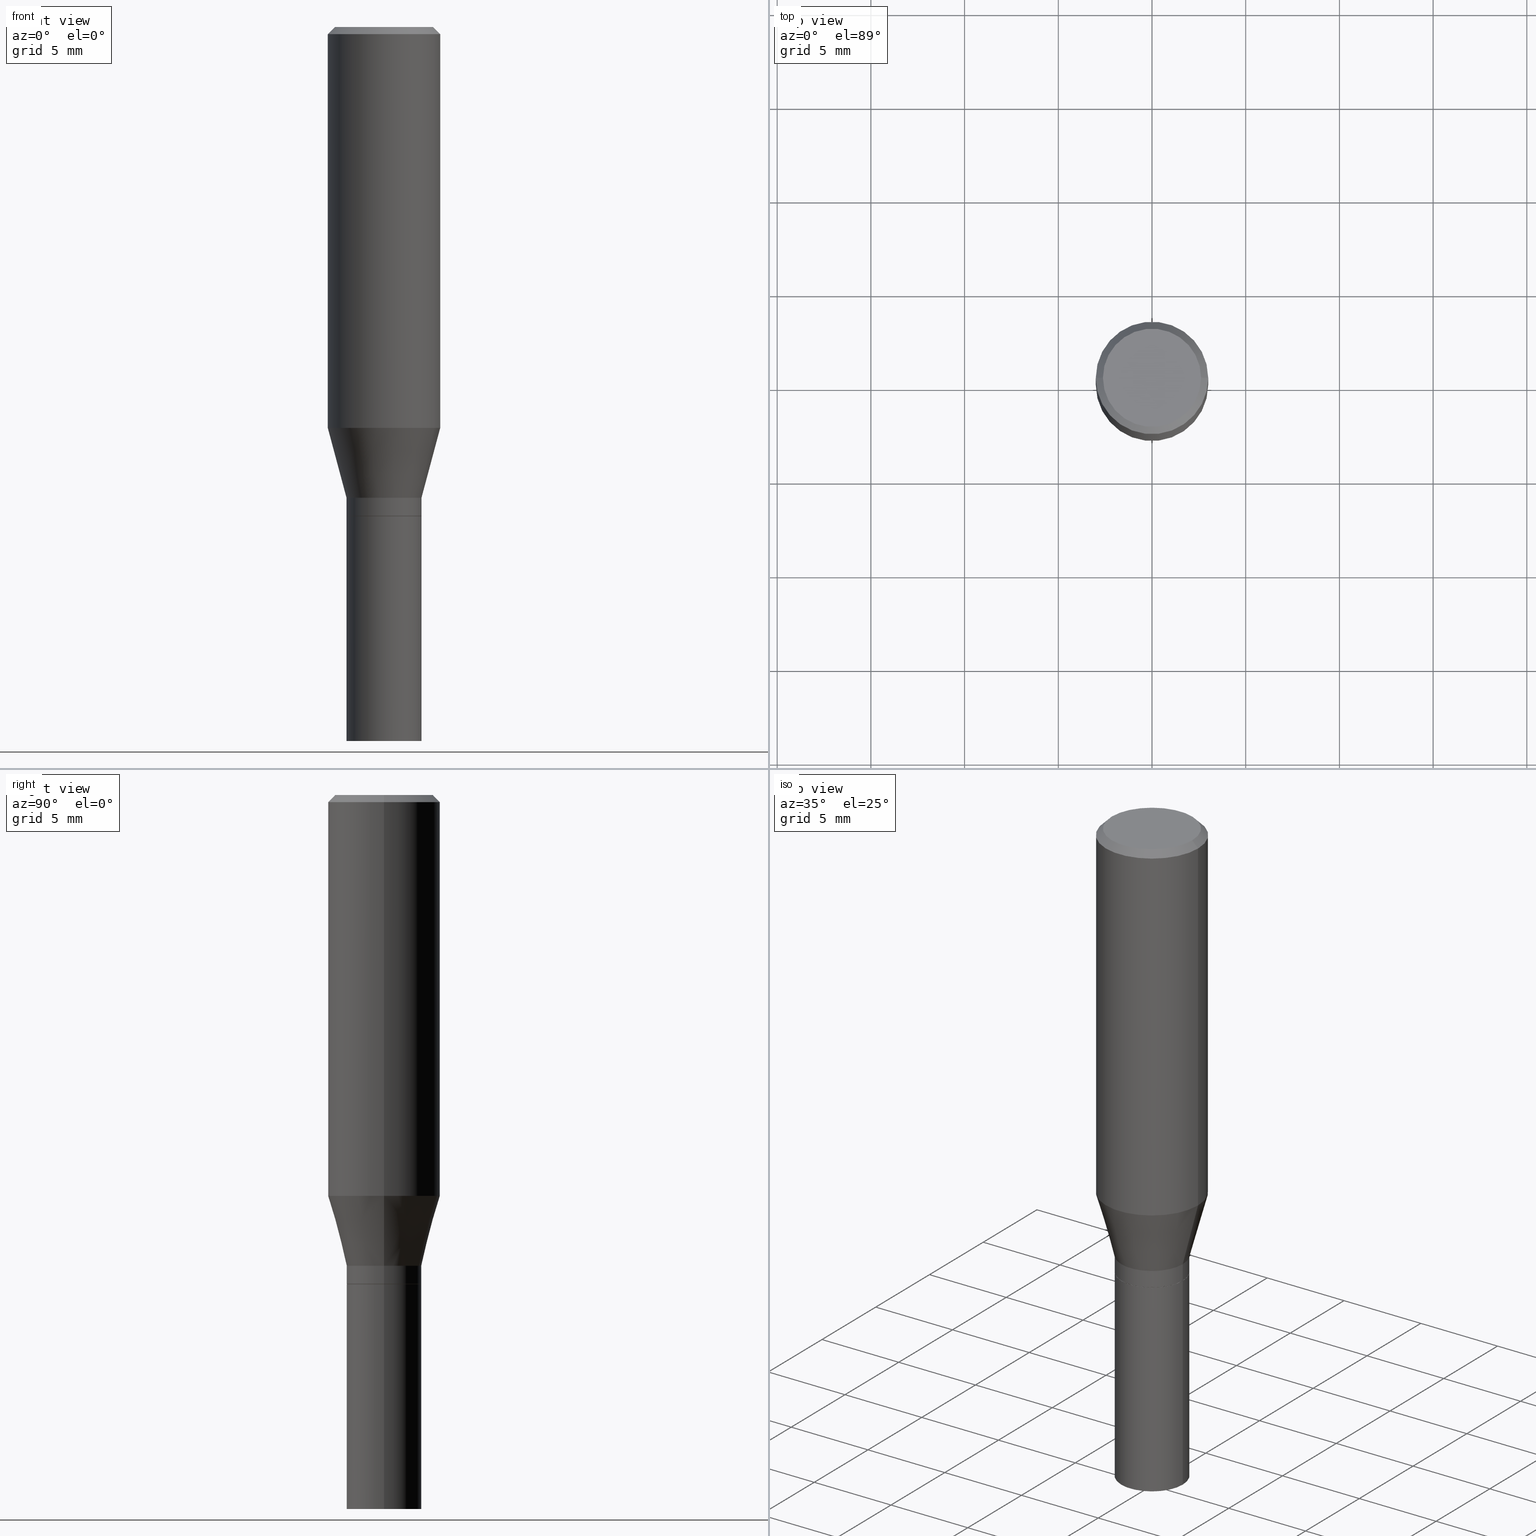
[diagram: canonical four-view strip — front | top / right | iso, engineering-drawing reading convention]
A machine part, canonical four-view strip (front | top / right | iso — engineering-drawing reading convention). The complete STEP part file that produces these views, byte-faithful:
ISO-10303-21;
HEADER;
FILE_DESCRIPTION (( 'STEP AP203' ),
    '1' );
FILE_NAME ('43921.STEP',
    '2024-03-12T19:19:30',
    ( '' ),
    ( '' ),
    'SwSTEP 2.0',
    'SolidWorks 2023',
    '' );
FILE_SCHEMA (( 'CONFIG_CONTROL_DESIGN' ));
ENDSEC;

DATA;
#1 = CARTESIAN_POINT ( 'NONE',  ( 2.418568649317100009E-29, -3.453075044115871321E-15, -0.9889999999999999902 ) ) ;
#2 = AXIS2_PLACEMENT_3D ( 'NONE', #320, #461, #108 ) ;
#3 = CARTESIAN_POINT ( 'NONE',  ( 3.668203209277697643E-31, -5.237222008264707922E-17, -0.01499999999999996995 ) ) ;
#4 = ADVANCED_FACE ( 'NONE', ( #430 ), #397, .F. ) ;
#5 = DIMENSIONAL_EXPONENTS ( 1.000000000000000000, 0.000000000000000000, 0.000000000000000000, 0.000000000000000000, 0.000000000000000000, 0.000000000000000000, 0.000000000000000000 ) ;
#6 = ORIENTED_EDGE ( 'NONE', *, *, #35, .T. ) ;
#7 = PERSON_AND_ORGANIZATION ( #159, #25 ) ;
#8 = FACE_OUTER_BOUND ( 'NONE', #138, .T. ) ;
#9 = APPROVAL_STATUS ( 'not_yet_approved' ) ;
#10 = EDGE_CURVE ( 'NONE', #69, #327, #122, .T. ) ;
#11 = VERTEX_POINT ( 'NONE', #275 ) ;
#12 = VECTOR ( 'NONE', #373, 39.37007874015748143 ) ;
#13 = CC_DESIGN_APPROVAL ( #264, ( #465 ) ) ;
#14 = PERSON_AND_ORGANIZATION ( #159, #25 ) ;
#15 = ORIENTED_EDGE ( 'NONE', *, *, #306, .F. ) ;
#16 = APPROVAL_DATE_TIME ( #88, #29 ) ;
#17 = CONICAL_SURFACE ( 'NONE', #428, 0.07875000000000016709, 0.2617993877991501850 ) ;
#18 = FACE_OUTER_BOUND ( 'NONE', #90, .T. ) ;
#19 = EDGE_CURVE ( 'NONE', #63, #119, #449, .T. ) ;
#20 = DIRECTION ( 'NONE',  ( 1.000000000000000000, -6.982962677686261977E-15, 0.000000000000000000 ) ) ;
#21 = DIRECTION ( 'NONE',  ( -2.445468806185136597E-29, 3.491481338843145583E-15, 1.000000000000000000 ) ) ;
#22 = DIRECTION ( 'NONE',  ( -2.445468806185136597E-29, 3.491481338843145583E-15, 1.000000000000000000 ) ) ;
#23 = EDGE_CURVE ( 'NONE', #63, #312, #456, .T. ) ;
#24 = ORIENTED_EDGE ( 'NONE', *, *, #198, .F. ) ;
#25 = ORGANIZATION ( 'UNSPECIFIED', 'UNSPECIFIED', '' ) ;
#26 = DIRECTION ( 'NONE',  ( -2.445468806185136597E-29, 3.491481338843145583E-15, 1.000000000000000000 ) ) ;
#27 = ORIENTED_EDGE ( 'NONE', *, *, #452, .T. ) ;
#28 = DIRECTION ( 'NONE',  ( -1.000000000000000000, 6.982962677686266711E-15, 0.000000000000000000 ) ) ;
#29 = APPROVAL ( #222, 'UNSPECIFIED' ) ;
#30 = DIRECTION ( 'NONE',  ( -2.445468806185136597E-29, 3.491481338843145583E-15, 1.000000000000000000 ) ) ;
#31 = DIRECTION ( 'NONE',  ( 1.000000000000000000, -6.982962677686266711E-15, 4.876176775795936353E-29 ) ) ;
#32 = AXIS2_PLACEMENT_3D ( 'NONE', #372, #51, #193 ) ;
#33 = DIRECTION ( 'NONE',  ( -2.438088387897960049E-29, 3.491481338843145188E-15, 1.000000000000000000 ) ) ;
#34 = APPROVAL_PERSON_ORGANIZATION ( #121, #264, #188 ) ;
#35 = EDGE_CURVE ( 'NONE', #169, #45, #167, .T. ) ;
#36 = DIRECTION ( 'NONE',  ( -2.445468806185136877E-29, 3.491481338843145188E-15, 1.000000000000000000 ) ) ;
#37 = CARTESIAN_POINT ( 'NONE',  ( 2.418568649317100009E-29, -3.453075044115871321E-15, -0.9889999999999999902 ) ) ;
#38 = EDGE_CURVE ( 'NONE', #123, #271, #232, .T. ) ;
#39 = DIRECTION ( 'NONE',  ( 0.7071067811865595631, -2.468850131082382884E-15, 0.7071067811865354713 ) ) ;
#40 = CIRCLE ( 'NONE', #97, 0.07875000000000000056 ) ;
#41 =( GEOMETRIC_REPRESENTATION_CONTEXT ( 3 ) GLOBAL_UNCERTAINTY_ASSIGNED_CONTEXT ( ( #174 ) ) GLOBAL_UNIT_ASSIGNED_CONTEXT ( ( #157, #440, #403 ) ) REPRESENTATION_CONTEXT ( 'NONE', 'WORKASPACE' ) );
#42 = APPROVAL_ROLE ( '' ) ;
#43 = EDGE_CURVE ( 'NONE', #312, #11, #195, .T. ) ;
#44 = PERSON_AND_ORGANIZATION ( #159, #25 ) ;
#45 = VERTEX_POINT ( 'NONE', #251 ) ;
#46 = CC_DESIGN_PERSON_AND_ORGANIZATION_ASSIGNMENT ( #14, #444, ( #168 ) ) ;
#47 = VERTEX_POINT ( 'NONE', #295 ) ;
#48 = AXIS2_PLACEMENT_3D ( 'NONE', #130, #22, #277 ) ;
#49 = EDGE_LOOP ( 'NONE', ( #350, #160, #425, #60 ) ) ;
#50 = ORIENTED_EDGE ( 'NONE', *, *, #152, .F. ) ;
#51 = DIRECTION ( 'NONE',  ( -2.445468806185136597E-29, 3.491481338843145583E-15, 1.000000000000000000 ) ) ;
#52 = ADVANCED_FACE ( 'NONE', ( #8 ), #407, .T. ) ;
#53 = ORIENTED_EDGE ( 'NONE', *, *, #230, .F. ) ;
#54 = AXIS2_PLACEMENT_3D ( 'NONE', #418, #102, #272 ) ;
#55 = CARTESIAN_POINT ( 'NONE',  ( 2.511741010832753769E-29, -3.586100483125795415E-15, -1.027100000000000124 ) ) ;
#56 = CARTESIAN_POINT ( 'NONE',  ( 2.512963745235846851E-29, -3.587846223795217707E-15, -1.027600000000000291 ) ) ;
#57 = PRODUCT ( '43921', '43921', '', ( #300 ) ) ;
#58 = DIRECTION ( 'NONE',  ( -1.000000000000000000, 6.982962677686266711E-15, 0.000000000000000000 ) ) ;
#59 = ADVANCED_FACE ( 'NONE', ( #387 ), #315, .T. ) ;
#60 = ORIENTED_EDGE ( 'NONE', *, *, #78, .F. ) ;
#61 = CARTESIAN_POINT ( 'NONE',  ( 0.07825000000000000011, -4.134263053324168046E-15, -1.027600000000000291 ) ) ;
#62 = CARTESIAN_POINT ( 'NONE',  ( -0.07875000000000000056, 5.595524044110789003E-16, -3.873661383575737792E-30 ) ) ;
#63 = VERTEX_POINT ( 'NONE', #280 ) ;
#64 = PRODUCT_DEFINITION_SHAPE ( 'NONE', 'NONE',  #465 ) ;
#65 = AXIS2_PLACEMENT_3D ( 'NONE', #381, #446, #207 ) ;
#66 = DIRECTION ( 'NONE',  ( 1.000000000000000000, -6.982962677686268288E-15, 0.000000000000000000 ) ) ;
#67 = CC_DESIGN_PERSON_AND_ORGANIZATION_ASSIGNMENT ( #434, #261, ( #465 ) ) ;
#68 = CARTESIAN_POINT ( 'NONE',  ( 0.07875000000000016709, -4.002983354983665455E-15, -0.9889999999999999902 ) ) ;
#69 = VERTEX_POINT ( 'NONE', #94 ) ;
#70 = DESIGN_CONTEXT ( 'detailed design', #276, 'design' ) ;
#71 = ADVANCED_FACE ( 'NONE', ( #93 ), #73, .T. ) ;
#72 = DIRECTION ( 'NONE',  ( -2.445468806185136597E-29, 3.491481338843145583E-15, 1.000000000000000000 ) ) ;
#73 = CONICAL_SURFACE ( 'NONE', #32, 0.07875000000000016709, 0.2617993877991501850 ) ;
#74 = CARTESIAN_POINT ( 'NONE',  ( 0.000000000000000000, 0.000000000000000000, 0.000000000000000000 ) ) ;
#75 = APPROVAL_PERSON_ORGANIZATION ( #7, #29, #116 ) ;
#76 = DIRECTION ( 'NONE',  ( -2.445468806185136597E-29, 3.491481338843145583E-15, 1.000000000000000000 ) ) ;
#77 = LINE ( 'NONE', #140, #356 ) ;
#78 = EDGE_CURVE ( 'NONE', #271, #327, #263, .T. ) ;
#79 = CARTESIAN_POINT ( 'NONE',  ( 7.199434520694539070E-16, 0.1030999999999999833, -2.799333564565821924E-16 ) ) ;
#80 = DIRECTION ( 'NONE',  ( 1.000000000000000000, -6.982962677686267499E-15, 0.000000000000000000 ) ) ;
#81 = DATE_AND_TIME ( #268, #450 ) ;
#82 = DIRECTION ( 'NONE',  ( 1.000000000000000000, -6.982962677686268288E-15, 0.000000000000000000 ) ) ;
#83 = CIRCLE ( 'NONE', #338, 0.07875000000000000056 ) ;
#84 = PERSON_AND_ORGANIZATION ( #159, #25 ) ;
#85 = ORIENTED_EDGE ( 'NONE', *, *, #148, .F. ) ;
#86 = DIRECTION ( 'NONE',  ( 1.000000000000000000, 0.000000000000000000, 0.000000000000000000 ) ) ;
#87 = APPLICATION_CONTEXT ( 'configuration controlled 3d designs of mechanical parts and assemblies' ) ;
#88 = DATE_AND_TIME ( #187, #391 ) ;
#89 = EDGE_CURVE ( 'NONE', #11, #312, #40, .T. ) ;
#90 = EDGE_LOOP ( 'NONE', ( #342, #253 ) ) ;
#91 = AXIS2_PLACEMENT_3D ( 'NONE', #270, #313, #309 ) ;
#92 = CC_DESIGN_APPROVAL ( #282, ( #168 ) ) ;
#93 = FACE_OUTER_BOUND ( 'NONE', #287, .T. ) ;
#94 = CARTESIAN_POINT ( 'NONE',  ( 0.07875000000000018097, -4.136008793993590338E-15, -1.027100000000000124 ) ) ;
#95 = COORDINATED_UNIVERSAL_TIME_OFFSET ( 5, 0, .BEHIND. ) ;
#96 = DIRECTION ( 'NONE',  ( 0.2588190451025214611, 1.565188264969620982E-15, 0.9659258262890679791 ) ) ;
#97 = AXIS2_PLACEMENT_3D ( 'NONE', #348, #355, #66 ) ;
#98 = FACE_OUTER_BOUND ( 'NONE', #404, .T. ) ;
#99 = CARTESIAN_POINT ( 'NONE',  ( 2.512963745235846851E-29, -3.587846223795217707E-15, -1.027600000000000291 ) ) ;
#100 = ORIENTED_EDGE ( 'NONE', *, *, #162, .F. ) ;
#101 = ORIENTED_EDGE ( 'NONE', *, *, #252, .F. ) ;
#102 = DIRECTION ( 'NONE',  ( -2.445468806185136597E-29, 3.491481338843145583E-15, 1.000000000000000000 ) ) ;
#103 = VECTOR ( 'NONE', #197, 39.37007874015748143 ) ;
#104 = LOCAL_TIME ( 15, 19, 30.00000000000000000, #258 ) ;
#105 = CARTESIAN_POINT ( 'NONE',  ( 3.668203209277697643E-31, -5.237222008264707922E-17, -0.01499999999999996995 ) ) ;
#106 = ADVANCED_FACE ( 'NONE', ( #206 ), #236, .T. ) ;
#107 = PLANE ( 'NONE',  #203 ) ;
#108 = DIRECTION ( 'NONE',  ( 1.000000000000000000, -6.982962677686266711E-15, 0.000000000000000000 ) ) ;
#109 = ORIENTED_EDGE ( 'NONE', *, *, #227, .T. ) ;
#110 = CARTESIAN_POINT ( 'NONE',  ( -0.07875000000000016709, -2.497350516807997556E-15, -0.9889999999999999902 ) ) ;
#111 = AXIS2_PLACEMENT_3D ( 'NONE', #210, #33, #177 ) ;
#112 = ADVANCED_FACE ( 'NONE', ( #18 ), #278, .F. ) ;
#113 = VERTEX_POINT ( 'NONE', #307 ) ;
#114 = CARTESIAN_POINT ( 'NONE',  ( 0.1180999999999999966, -3.765017257078630630E-15, -0.8421438007221657696 ) ) ;
#115 = DIRECTION ( 'NONE',  ( 0.7071067811865446862, -7.319954787623245001E-15, -0.7071067811865503483 ) ) ;
#116 = APPROVAL_ROLE ( '' ) ;
#117 = AXIS2_PLACEMENT_3D ( 'NONE', #3, #72, #424 ) ;
#118 = CC_DESIGN_DATE_AND_TIME_ASSIGNMENT ( #81, #219, ( #168 ) ) ;
#119 = VERTEX_POINT ( 'NONE', #235 ) ;
#120 = EDGE_CURVE ( 'NONE', #113, #423, #414, .T. ) ;
#121 = PERSON_AND_ORGANIZATION ( #159, #25 ) ;
#122 = LINE ( 'NONE', #296, #458 ) ;
#123 = VERTEX_POINT ( 'NONE', #308 ) ;
#124 = ADVANCED_FACE ( 'NONE', ( #231 ), #354, .T. ) ;
#125 = CIRCLE ( 'NONE', #175, 0.1030999999999999833 ) ;
#126 = COORDINATED_UNIVERSAL_TIME_OFFSET ( 5, 0, .BEHIND. ) ;
#127 = DIRECTION ( 'NONE',  ( -2.445468806185136597E-29, 3.491481338843145583E-15, 1.000000000000000000 ) ) ;
#128 = ORIENTED_EDGE ( 'NONE', *, *, #120, .F. ) ;
#129 = ORIENTED_EDGE ( 'NONE', *, *, #182, .F. ) ;
#130 = CARTESIAN_POINT ( 'NONE',  ( 2.512963745235846851E-29, -3.587846223795217707E-15, -1.027600000000000291 ) ) ;
#131 = VECTOR ( 'NONE', #96, 39.37007874015748143 ) ;
#132 = DIRECTION ( 'NONE',  ( -2.445468806185136597E-29, 3.491481338843145583E-15, 1.000000000000000000 ) ) ;
#133 = ORIENTED_EDGE ( 'NONE', *, *, #182, .T. ) ;
#134 = FACE_OUTER_BOUND ( 'NONE', #366, .T. ) ;
#135 = CC_DESIGN_PERSON_AND_ORGANIZATION_ASSIGNMENT ( #44, #329, ( #367 ) ) ;
#136 = ORIENTED_EDGE ( 'NONE', *, *, #252, .T. ) ;
#137 = CARTESIAN_POINT ( 'NONE',  ( -0.1180999999999999966, 7.723156721521009862E-16, -0.01499999999999996995 ) ) ;
#138 = EDGE_LOOP ( 'NONE', ( #6, #244, #388, #291 ) ) ;
#139 = AXIS2_PLACEMENT_3D ( 'NONE', #357, #143, #183 ) ;
#140 = CARTESIAN_POINT ( 'NONE',  ( 0.07825000000000000011, -4.134263053324168046E-15, -1.027600000000000291 ) ) ;
#141 = FACE_OUTER_BOUND ( 'NONE', #267, .T. ) ;
#142 = EDGE_LOOP ( 'NONE', ( #176, #242, #154, #101 ) ) ;
#143 = DIRECTION ( 'NONE',  ( -2.445468806185136597E-29, 3.491481338843145583E-15, 1.000000000000000000 ) ) ;
#144 = ORIENTED_EDGE ( 'NONE', *, *, #19, .F. ) ;
#145 = CIRCLE ( 'NONE', #304, 0.07875000000000018097 ) ;
#146 = CARTESIAN_POINT ( 'NONE',  ( 0.000000000000000000, 0.000000000000000000, 0.000000000000000000 ) ) ;
#147 = EDGE_LOOP ( 'NONE', ( #462, #144 ) ) ;
#148 = EDGE_CURVE ( 'NONE', #119, #11, #380, .T. ) ;
#149 = CARTESIAN_POINT ( 'NONE',  ( -0.1180999999999999966, -6.571998215305863288E-16, -0.01499999999999996995 ) ) ;
#150 = ORIENTED_EDGE ( 'NONE', *, *, #419, .F. ) ;
#151 = APPROVAL_STATUS ( 'not_yet_approved' ) ;
#152 = EDGE_CURVE ( 'NONE', #123, #69, #145, .T. ) ;
#153 = AXIS2_PLACEMENT_3D ( 'NONE', #170, #453, #341 ) ;
#154 = ORIENTED_EDGE ( 'NONE', *, *, #452, .F. ) ;
#155 = CARTESIAN_POINT ( 'NONE',  ( 0.000000000000000000, 0.000000000000000000, 0.000000000000000000 ) ) ;
#156 = EDGE_LOOP ( 'NONE', ( #15, #441, #417, #50 ) ) ;
#157 =( CONVERSION_BASED_UNIT ( 'INCH', #406 ) LENGTH_UNIT ( ) NAMED_UNIT ( #5 ) );
#158 = ORIENTED_EDGE ( 'NONE', *, *, #351, .F. ) ;
#159 = PERSON ( 'UNSPECIFIED', 'UNSPECIFIED', 'UNSPECIFIED', ('UNSPECIFIED'), ('UNSPECIFIED'), ('UNSPECIFIED') ) ;
#160 = ORIENTED_EDGE ( 'NONE', *, *, #152, .T. ) ;
#161 = AXIS2_PLACEMENT_3D ( 'NONE', #216, #283, #429 ) ;
#162 = EDGE_CURVE ( 'NONE', #205, #423, #448, .T. ) ;
#163 = FACE_OUTER_BOUND ( 'NONE', #246, .T. ) ;
#164 = CARTESIAN_POINT ( 'NONE',  ( -0.07875000000000018097, 5.595524044110801822E-16, -3.873661383575747601E-30 ) ) ;
#165 = DIRECTION ( 'NONE',  ( -0.7071067811865446862, 2.468850131082227084E-15, -0.7071067811865503483 ) ) ;
#166 = CARTESIAN_POINT ( 'NONE',  ( -0.07875000000000016709, -2.893522639704791336E-15, -0.9889999999999999902 ) ) ;
#167 = CIRCLE ( 'NONE', #323, 0.07825000000000000011 ) ;
#168 = SECURITY_CLASSIFICATION ( '', '', #334 ) ;
#169 = VERTEX_POINT ( 'NONE', #61 ) ;
#170 = CARTESIAN_POINT ( 'NONE',  ( 0.000000000000000000, 0.000000000000000000, 0.000000000000000000 ) ) ;
#171 = LINE ( 'NONE', #68, #131 ) ;
#172 = DIRECTION ( 'NONE',  ( -2.445468806185136597E-29, 3.491481338843145583E-15, 1.000000000000000000 ) ) ;
#173 = ORIENTED_EDGE ( 'NONE', *, *, #402, .T. ) ;
#174 = UNCERTAINTY_MEASURE_WITH_UNIT (LENGTH_MEASURE( 1.000000000000000082E-05 ), #157, 'distance_accuracy_value', 'NONE');
#175 = AXIS2_PLACEMENT_3D ( 'NONE', #451, #132, #239 ) ;
#176 = ORIENTED_EDGE ( 'NONE', *, *, #290, .T. ) ;
#177 = DIRECTION ( 'NONE',  ( 1.000000000000000000, -6.982962677686265922E-15, 4.876176775795935793E-29 ) ) ;
#178 = CARTESIAN_POINT ( 'NONE',  ( -0.07825000000000000011, -3.031846533062939410E-15, -1.027600000000000291 ) ) ;
#179 = ORIENTED_EDGE ( 'NONE', *, *, #35, .F. ) ;
#180 = DIRECTION ( 'NONE',  ( 1.000000000000000000, -6.982962677686269077E-15, 0.000000000000000000 ) ) ;
#181 = ORIENTED_EDGE ( 'NONE', *, *, #43, .F. ) ;
#182 = EDGE_CURVE ( 'NONE', #327, #286, #171, .T. ) ;
#183 = DIRECTION ( 'NONE',  ( 1.000000000000000000, -6.982962677686269077E-15, 0.000000000000000000 ) ) ;
#184 = ORIENTED_EDGE ( 'NONE', *, *, #19, .T. ) ;
#185 = PRODUCT_RELATED_PRODUCT_CATEGORY ( 'detail', '', ( #57 ) ) ;
#186 = ADVANCED_FACE ( 'NONE', ( #163 ), #265, .T. ) ;
#187 = CALENDAR_DATE ( 2024, 12, 3 ) ;
#188 = APPROVAL_ROLE ( '' ) ;
#189 = CC_DESIGN_APPROVAL ( #29, ( #367 ) ) ;
#190 = CC_DESIGN_PERSON_AND_ORGANIZATION_ASSIGNMENT ( #84, #294, ( #367 ) ) ;
#191 = APPLICATION_PROTOCOL_DEFINITION ( 'international standard', 'config_control_design', 1994, #276 ) ;
#192 = ORIENTED_EDGE ( 'NONE', *, *, #336, .T. ) ;
#193 = DIRECTION ( 'NONE',  ( 1.000000000000000000, -6.982962677686265922E-15, 0.000000000000000000 ) ) ;
#194 = CC_DESIGN_DATE_AND_TIME_ASSIGNMENT ( #223, #302, ( #465 ) ) ;
#195 = CIRCLE ( 'NONE', #256, 0.07875000000000000056 ) ;
#196 = AXIS2_PLACEMENT_3D ( 'NONE', #146, #289, #353 ) ;
#197 = DIRECTION ( 'NONE',  ( -0.2588190451025214611, 5.211531920934550253E-15, 0.9659258262890679791 ) ) ;
#198 = EDGE_CURVE ( 'NONE', #271, #205, #199, .T. ) ;
#199 = LINE ( 'NONE', #166, #103 ) ;
#200 = EDGE_LOOP ( 'NONE', ( #431, #184, #301, #181 ) ) ;
#201 = ORIENTED_EDGE ( 'NONE', *, *, #120, .T. ) ;
#202 = CYLINDRICAL_SURFACE ( 'NONE', #153, 0.1180999999999999966 ) ;
#203 = AXIS2_PLACEMENT_3D ( 'NONE', #79, #359, #245 ) ;
#204 = ADVANCED_FACE ( 'NONE', ( #98 ), #202, .T. ) ;
#205 = VERTEX_POINT ( 'NONE', #420 ) ;
#206 = FACE_OUTER_BOUND ( 'NONE', #200, .T. ) ;
#207 = DIRECTION ( 'NONE',  ( 1.000000000000000000, -6.982962677686261977E-15, 0.000000000000000000 ) ) ;
#208 = PLANE ( 'NONE',  #111 ) ;
#209 = ADVANCED_FACE ( 'NONE', ( #134 ), #383, .T. ) ;
#210 = CARTESIAN_POINT ( 'NONE',  ( 2.512963745235846851E-29, -3.587846223795217707E-15, -1.027600000000000291 ) ) ;
#211 = CLOSED_SHELL ( 'NONE', ( #279, #52, #209, #59, #71, #317, #204, #186, #389, #447, #124, #369 ) ) ;
#212 = AXIS2_PLACEMENT_3D ( 'NONE', #459, #392, #180 ) ;
#213 = DIRECTION ( 'NONE',  ( 1.000000000000000000, -6.982962677686265922E-15, 0.000000000000000000 ) ) ;
#214 = EDGE_LOOP ( 'NONE', ( #24, #400, #133, #229 ) ) ;
#215 = FACE_OUTER_BOUND ( 'NONE', #299, .T. ) ;
#216 = CARTESIAN_POINT ( 'NONE',  ( 0.000000000000000000, 0.000000000000000000, 0.000000000000000000 ) ) ;
#217 = EDGE_CURVE ( 'NONE', #119, #63, #83, .T. ) ;
#218 = CLOSED_SHELL ( 'NONE', ( #384, #4, #106, #112 ) ) ;
#219 = DATE_TIME_ROLE ( 'classification_date' ) ;
#220 = ORIENTED_EDGE ( 'NONE', *, *, #23, .T. ) ;
#221 = EDGE_CURVE ( 'NONE', #45, #169, #436, .T. ) ;
#222 = APPROVAL_STATUS ( 'not_yet_approved' ) ;
#223 = DATE_AND_TIME ( #365, #413 ) ;
#224 = CIRCLE ( 'NONE', #266, 0.07875000000000016709 ) ;
#225 = ORIENTED_EDGE ( 'NONE', *, *, #10, .F. ) ;
#226 = APPLICATION_PROTOCOL_DEFINITION ( 'international standard', 'config_control_design', 1994, #87 ) ;
#227 = EDGE_CURVE ( 'NONE', #284, #113, #257, .T. ) ;
#228 = DIRECTION ( 'NONE',  ( -2.445468806185136877E-29, 3.491481338843145188E-15, 1.000000000000000000 ) ) ;
#229 = ORIENTED_EDGE ( 'NONE', *, *, #336, .F. ) ;
#230 = EDGE_CURVE ( 'NONE', #113, #284, #125, .T. ) ;
#231 = FACE_OUTER_BOUND ( 'NONE', #156, .T. ) ;
#232 = LINE ( 'NONE', #164, #318 ) ;
#233 = AXIS2_PLACEMENT_3D ( 'NONE', #74, #247, #281 ) ;
#234 = APPROVAL_DATE_TIME ( #378, #282 ) ;
#235 = CARTESIAN_POINT ( 'NONE',  ( 0.07875000000000000056, -5.787130319132511522E-15, -1.500000000000000222 ) ) ;
#236 = CYLINDRICAL_SURFACE ( 'NONE', #344, 0.07875000000000000056 ) ;
#237 = ORIENTED_EDGE ( 'NONE', *, *, #433, .F. ) ;
#238 = CALENDAR_DATE ( 2024, 12, 3 ) ;
#239 = DIRECTION ( 'NONE',  ( 1.000000000000000000, -6.982962677686268288E-15, 4.883331232093010009E-29 ) ) ;
#240 = DIRECTION ( 'NONE',  ( 1.000000000000000000, -6.982962677686267499E-15, 0.000000000000000000 ) ) ;
#241 = VECTOR ( 'NONE', #115, 39.37007874015748143 ) ;
#242 = ORIENTED_EDGE ( 'NONE', *, *, #162, .T. ) ;
#243 = CARTESIAN_POINT ( 'NONE',  ( 0.07875000000000000056, -5.499083108677934443E-16, 3.839989210939299016E-30 ) ) ;
#244 = ORIENTED_EDGE ( 'NONE', *, *, #306, .T. ) ;
#245 = DIRECTION ( 'NONE',  ( -1.000000000000000000, 6.982962677686265922E-15, -4.876176775795935793E-29 ) ) ;
#246 = EDGE_LOOP ( 'NONE', ( #237, #53, #201, #292 ) ) ;
#247 = DIRECTION ( 'NONE',  ( -2.445468806185136597E-29, 3.491481338843145583E-15, 1.000000000000000000 ) ) ;
#248 = VECTOR ( 'NONE', #426, 39.37007874015748143 ) ;
#249 = LINE ( 'NONE', #178, #248 ) ;
#250 = CARTESIAN_POINT ( 'NONE',  ( 0.07875000000000016709, -4.002983354983665455E-15, -0.9889999999999999902 ) ) ;
#251 = CARTESIAN_POINT ( 'NONE',  ( -0.07825000000000000011, -3.029197305888827420E-15, -1.027600000000000291 ) ) ;
#252 = EDGE_CURVE ( 'NONE', #286, #47, #382, .T. ) ;
#253 = ORIENTED_EDGE ( 'NONE', *, *, #43, .T. ) ;
#254 = LINE ( 'NONE', #432, #241 ) ;
#255 = DIRECTION ( 'NONE',  ( -2.445468806185136597E-29, 3.491481338843145583E-15, 1.000000000000000000 ) ) ;
#256 = AXIS2_PLACEMENT_3D ( 'NONE', #399, #255, #82 ) ;
#257 = CIRCLE ( 'NONE', #54, 0.1030999999999999833 ) ;
#258 = COORDINATED_UNIVERSAL_TIME_OFFSET ( 5, 0, .BEHIND. ) ;
#259 = PERSON_AND_ORGANIZATION ( #159, #25 ) ;
#260 = ORIENTED_EDGE ( 'NONE', *, *, #351, .T. ) ;
#261 = PERSON_AND_ORGANIZATION_ROLE ( 'creator' ) ;
#262 = ORIENTED_EDGE ( 'NONE', *, *, #227, .F. ) ;
#263 = CIRCLE ( 'NONE', #331, 0.07875000000000016709 ) ;
#264 = APPROVAL ( #151, 'UNSPECIFIED' ) ;
#265 = CONICAL_SURFACE ( 'NONE', #421, 0.1180999999999999966, 0.7853981633974442822 ) ;
#266 = AXIS2_PLACEMENT_3D ( 'NONE', #1, #172, #213 ) ;
#267 = EDGE_LOOP ( 'NONE', ( #463, #220, #362, #85 ) ) ;
#268 = CALENDAR_DATE ( 2024, 12, 3 ) ;
#269 = EDGE_CURVE ( 'NONE', #169, #69, #77, .T. ) ;
#270 = CARTESIAN_POINT ( 'NONE',  ( 5.499083108678184906E-16, 0.07874999999999640621, -1.027600000000000291 ) ) ;
#271 = VERTEX_POINT ( 'NONE', #110 ) ;
#272 = DIRECTION ( 'NONE',  ( 1.000000000000000000, -6.982962677686268288E-15, 4.883331232093010009E-29 ) ) ;
#273 = CIRCLE ( 'NONE', #117, 0.1180999999999999966 ) ;
#274 = CARTESIAN_POINT ( 'NONE',  ( 0.000000000000000000, 0.000000000000000000, 0.000000000000000000 ) ) ;
#275 = CARTESIAN_POINT ( 'NONE',  ( 0.07875000000000000056, -4.137754534663010264E-15, -1.027600000000000069 ) ) ;
#276 = APPLICATION_CONTEXT ( 'configuration controlled 3d designs of mechanical parts and assemblies' ) ;
#277 = DIRECTION ( 'NONE',  ( 1.000000000000000000, -6.982962677686267499E-15, 0.000000000000000000 ) ) ;
#278 = PLANE ( 'NONE',  #91 ) ;
#279 = ADVANCED_FACE ( 'NONE', ( #215 ), #322, .T. ) ;
#280 = CARTESIAN_POINT ( 'NONE',  ( -0.07875000000000000056, -3.852981711618889535E-15, -1.500000000000000222 ) ) ;
#281 = DIRECTION ( 'NONE',  ( 1.000000000000000000, -6.982962677686267499E-15, 4.876176775795936353E-29 ) ) ;
#282 = APPROVAL ( #9, 'UNSPECIFIED' ) ;
#283 = DIRECTION ( 'NONE',  ( -2.445468806185136597E-29, 3.491481338843145583E-15, 1.000000000000000000 ) ) ;
#284 = VERTEX_POINT ( 'NONE', #358 ) ;
#285 = DIRECTION ( 'NONE',  ( -2.445468806185136597E-29, 3.491481338843145583E-15, 1.000000000000000000 ) ) ;
#286 = VERTEX_POINT ( 'NONE', #114 ) ;
#287 = EDGE_LOOP ( 'NONE', ( #260, #466, #394, #129 ) ) ;
#288 = LOCAL_TIME ( 15, 19, 30.00000000000000000, #95 ) ;
#289 = DIRECTION ( 'NONE',  ( -2.445468806185136597E-29, 3.491481338843145583E-15, 1.000000000000000000 ) ) ;
#290 = EDGE_CURVE ( 'NONE', #286, #205, #401, .T. ) ;
#291 = ORIENTED_EDGE ( 'NONE', *, *, #269, .F. ) ;
#292 = ORIENTED_EDGE ( 'NONE', *, *, #419, .T. ) ;
#293 = CYLINDRICAL_SURFACE ( 'NONE', #161, 0.07875000000000000056 ) ;
#294 = PERSON_AND_ORGANIZATION_ROLE ( 'creator' ) ;
#295 = CARTESIAN_POINT ( 'NONE',  ( 0.1180999999999999966, -8.770601123173952432E-16, -0.01499999999999996995 ) ) ;
#296 = CARTESIAN_POINT ( 'NONE',  ( 0.07875000000000018097, -5.499083108677948248E-16, 3.839989210939308826E-30 ) ) ;
#297 = AXIS2_PLACEMENT_3D ( 'NONE', #361, #326, #438 ) ;
#298 = CIRCLE ( 'NONE', #2, 0.1180999999999999966 ) ;
#299 = EDGE_LOOP ( 'NONE', ( #173, #439, #158, #225 ) ) ;
#300 = MECHANICAL_CONTEXT ( 'NONE', #87, 'mechanical' ) ;
#301 = ORIENTED_EDGE ( 'NONE', *, *, #148, .T. ) ;
#302 = DATE_TIME_ROLE ( 'creation_date' ) ;
#303 = APPROVAL_DATE_TIME ( #328, #264 ) ;
#304 = AXIS2_PLACEMENT_3D ( 'NONE', #55, #127, #410 ) ;
#305 = AXIS2_PLACEMENT_3D ( 'NONE', #155, #405, #86 ) ;
#306 = EDGE_CURVE ( 'NONE', #45, #123, #249, .T. ) ;
#307 = CARTESIAN_POINT ( 'NONE',  ( -0.1030999999999999833, 7.461295621107778410E-16, 1.600767391562869831E-16 ) ) ;
#308 = CARTESIAN_POINT ( 'NONE',  ( -0.07875000000000018097, -3.026548078714715430E-15, -1.027100000000000124 ) ) ;
#309 = DIRECTION ( 'NONE',  ( -1.000000000000000000, 6.982962677686265922E-15, -4.876176775795935793E-29 ) ) ;
#310 = VECTOR ( 'NONE', #165, 39.37007874015748143 ) ;
#311 = VECTOR ( 'NONE', #36, 39.37007874015748143 ) ;
#312 = VERTEX_POINT ( 'NONE', #321 ) ;
#313 = DIRECTION ( 'NONE',  ( 2.438088387897960049E-29, -3.491481338843145188E-15, -1.000000000000000000 ) ) ;
#314 = DIRECTION ( 'NONE',  ( -2.445468806185136597E-29, 3.491481338843145583E-15, 1.000000000000000000 ) ) ;
#315 = CYLINDRICAL_SURFACE ( 'NONE', #375, 0.1180999999999999966 ) ;
#316 = DIRECTION ( 'NONE',  ( 1.000000000000000000, -6.982962677686265133E-15, 0.000000000000000000 ) ) ;
#317 = ADVANCED_FACE ( 'NONE', ( #386 ), #17, .T. ) ;
#318 = VECTOR ( 'NONE', #411, 39.37007874015748143 ) ;
#319 = CIRCLE ( 'NONE', #460, 0.07875000000000018097 ) ;
#320 = CARTESIAN_POINT ( 'NONE',  ( 3.668203209277697643E-31, -5.237222008264707922E-17, -0.01499999999999996995 ) ) ;
#321 = CARTESIAN_POINT ( 'NONE',  ( -0.07875000000000000056, -3.852981711618889535E-15, -1.027600000000000069 ) ) ;
#322 = CYLINDRICAL_SURFACE ( 'NONE', #233, 0.07875000000000018097 ) ;
#323 = AXIS2_PLACEMENT_3D ( 'NONE', #56, #21, #240 ) ;
#324 = DIRECTION ( 'NONE',  ( 1.000000000000000000, -6.982962677686265922E-15, 0.000000000000000000 ) ) ;
#325 = CARTESIAN_POINT ( 'NONE',  ( 2.511741010832753769E-29, -3.586100483125795415E-15, -1.027100000000000124 ) ) ;
#326 = DIRECTION ( 'NONE',  ( -2.438088387897960049E-29, 3.491481338843145188E-15, 1.000000000000000000 ) ) ;
#327 = VERTEX_POINT ( 'NONE', #250 ) ;
#328 = DATE_AND_TIME ( #370, #104 ) ;
#329 = PERSON_AND_ORGANIZATION_ROLE ( 'design_supplier' ) ;
#330 = ORIENTED_EDGE ( 'NONE', *, *, #230, .T. ) ;
#331 = AXIS2_PLACEMENT_3D ( 'NONE', #337, #76, #324 ) ;
#332 =( LENGTH_UNIT ( ) NAMED_UNIT ( * ) SI_UNIT ( $, .METRE. ) );
#333 = EDGE_LOOP ( 'NONE', ( #330, #109 ) ) ;
#334 = SECURITY_CLASSIFICATION_LEVEL ( 'unclassified' ) ;
#335 = COORDINATED_UNIVERSAL_TIME_OFFSET ( 5, 0, .BEHIND. ) ;
#336 = EDGE_CURVE ( 'NONE', #205, #286, #408, .T. ) ;
#337 = CARTESIAN_POINT ( 'NONE',  ( 2.418568649317100009E-29, -3.453075044115871321E-15, -0.9889999999999999902 ) ) ;
#338 = AXIS2_PLACEMENT_3D ( 'NONE', #339, #340, #20 ) ;
#339 = CARTESIAN_POINT ( 'NONE',  ( 3.668203209277704895E-29, -5.237222008264718177E-15, -1.500000000000000222 ) ) ;
#340 = DIRECTION ( 'NONE',  ( -2.445468806185136597E-29, 3.491481338843145583E-15, 1.000000000000000000 ) ) ;
#341 = DIRECTION ( 'NONE',  ( 1.000000000000000000, -6.982962677686266711E-15, 4.876176775795936353E-29 ) ) ;
#342 = ORIENTED_EDGE ( 'NONE', *, *, #89, .T. ) ;
#343 = CARTESIAN_POINT ( 'NONE',  ( 3.668203209277697643E-31, -5.237222008264707922E-17, -0.01499999999999996995 ) ) ;
#344 = AXIS2_PLACEMENT_3D ( 'NONE', #274, #26, #415 ) ;
#345 = CC_DESIGN_SECURITY_CLASSIFICATION ( #168, ( #367 ) ) ;
#346 = CC_DESIGN_PERSON_AND_ORGANIZATION_ASSIGNMENT ( #259, #368, ( #57 ) ) ;
#347 = DIRECTION ( 'NONE',  ( -2.445468806185136877E-29, 3.491481338843145188E-15, 1.000000000000000000 ) ) ;
#348 = CARTESIAN_POINT ( 'NONE',  ( 2.512963745235846570E-29, -3.587846223795216918E-15, -1.027600000000000069 ) ) ;
#349 = CARTESIAN_POINT ( 'NONE',  ( 0.000000000000000000, 0.000000000000000000, 0.000000000000000000 ) ) ;
#350 = ORIENTED_EDGE ( 'NONE', *, *, #38, .F. ) ;
#351 = EDGE_CURVE ( 'NONE', #327, #271, #224, .T. ) ;
#352 = DIRECTION ( 'NONE',  ( 1.000000000000000000, -6.982962677686265922E-15, 0.000000000000000000 ) ) ;
#353 = DIRECTION ( 'NONE',  ( 1.000000000000000000, -6.982962677686267499E-15, 4.876176775795936353E-29 ) ) ;
#354 = CONICAL_SURFACE ( 'NONE', #427, 0.07825000000000000011, 0.7853981633974653764 ) ;
#355 = DIRECTION ( 'NONE',  ( -2.445468806185136597E-29, 3.491481338843145583E-15, 1.000000000000000000 ) ) ;
#356 = VECTOR ( 'NONE', #39, 39.37007874015748143 ) ;
#357 = CARTESIAN_POINT ( 'NONE',  ( 2.059436394988248282E-29, -2.940329364843882367E-15, -0.8421438007221657696 ) ) ;
#358 = CARTESIAN_POINT ( 'NONE',  ( 0.1030999999999999833, -7.849571885948545803E-16, 1.600767391562973369E-16 ) ) ;
#359 = DIRECTION ( 'NONE',  ( 2.438088387897960049E-29, -3.491481338843145188E-15, -1.000000000000000000 ) ) ;
#360 = DIRECTION ( 'NONE',  ( -2.445468806185136597E-29, 3.491481338843145583E-15, 1.000000000000000000 ) ) ;
#361 = CARTESIAN_POINT ( 'NONE',  ( 3.576687321579069994E-29, -5.368277968210015545E-15, -1.500000000000000222 ) ) ;
#362 = ORIENTED_EDGE ( 'NONE', *, *, #89, .F. ) ;
#363 = APPROVAL_PERSON_ORGANIZATION ( #364, #282, #42 ) ;
#364 = PERSON_AND_ORGANIZATION ( #159, #25 ) ;
#365 = CALENDAR_DATE ( 2024, 12, 3 ) ;
#366 = EDGE_LOOP ( 'NONE', ( #262, #416, #27, #128 ) ) ;
#367 = PRODUCT_DEFINITION_FORMATION_WITH_SPECIFIED_SOURCE ( 'ANY', '', #57, .NOT_KNOWN. ) ;
#368 = PERSON_AND_ORGANIZATION_ROLE ( 'design_owner' ) ;
#369 = ADVANCED_FACE ( 'NONE', ( #390 ), #422, .T. ) ;
#370 = CALENDAR_DATE ( 2024, 12, 3 ) ;
#371 = MANIFOLD_SOLID_BREP ( 'Body-Move/Copy2[1]', #218 ) ;
#372 = CARTESIAN_POINT ( 'NONE',  ( 2.418568649317100009E-29, -3.453075044115871321E-15, -0.9889999999999999902 ) ) ;
#373 = DIRECTION ( 'NONE',  ( -2.445468806185136877E-29, 3.491481338843145188E-15, 1.000000000000000000 ) ) ;
#374 = EDGE_LOOP ( 'NONE', ( #179, #409 ) ) ;
#375 = AXIS2_PLACEMENT_3D ( 'NONE', #349, #457, #31 ) ;
#376 = DIRECTION ( 'NONE',  ( 1.000000000000000000, -6.982962677686267499E-15, 0.000000000000000000 ) ) ;
#377 = MANIFOLD_SOLID_BREP ( 'Body-Move/Copy2[2]', #211 ) ;
#378 = DATE_AND_TIME ( #238, #288 ) ;
#379 = DIRECTION ( 'NONE',  ( 2.445468806185136597E-29, -3.491481338843145583E-15, -1.000000000000000000 ) ) ;
#380 = LINE ( 'NONE', #243, #412 ) ;
#381 = CARTESIAN_POINT ( 'NONE',  ( 3.668203209277704895E-29, -5.237222008264718177E-15, -1.500000000000000222 ) ) ;
#382 = LINE ( 'NONE', #464, #311 ) ;
#383 = CONICAL_SURFACE ( 'NONE', #443, 0.1180999999999999966, 0.7853981633974442822 ) ;
#384 = ADVANCED_FACE ( 'NONE', ( #141 ), #293, .T. ) ;
#385 = DIRECTION ( 'NONE',  ( 2.445468806185136597E-29, -3.491481338843145583E-15, -1.000000000000000000 ) ) ;
#386 = FACE_OUTER_BOUND ( 'NONE', #214, .T. ) ;
#387 = FACE_OUTER_BOUND ( 'NONE', #142, .T. ) ;
#388 = ORIENTED_EDGE ( 'NONE', *, *, #402, .F. ) ;
#389 = ADVANCED_FACE ( 'NONE', ( #395 ), #107, .F. ) ;
#390 = FACE_OUTER_BOUND ( 'NONE', #49, .T. ) ;
#391 = LOCAL_TIME ( 15, 19, 30.00000000000000000, #335 ) ;
#392 = DIRECTION ( 'NONE',  ( -2.445468806185136597E-29, 3.491481338843145583E-15, 1.000000000000000000 ) ) ;
#393 = ADVANCED_BREP_SHAPE_REPRESENTATION ( '43921', ( #371, #377, #305 ), #41 ) ;
#394 = ORIENTED_EDGE ( 'NONE', *, *, #290, .F. ) ;
#395 = FACE_OUTER_BOUND ( 'NONE', #333, .T. ) ;
#396 = CARTESIAN_POINT ( 'NONE',  ( 2.512963745235846851E-29, -3.587846223795217707E-15, -1.027600000000000291 ) ) ;
#397 = PLANE ( 'NONE',  #297 ) ;
#398 = FACE_OUTER_BOUND ( 'NONE', #374, .T. ) ;
#399 = CARTESIAN_POINT ( 'NONE',  ( 2.512963745235846570E-29, -3.587846223795216918E-15, -1.027600000000000069 ) ) ;
#400 = ORIENTED_EDGE ( 'NONE', *, *, #78, .T. ) ;
#401 = CIRCLE ( 'NONE', #139, 0.1180999999999999966 ) ;
#402 = EDGE_CURVE ( 'NONE', #69, #123, #319, .T. ) ;
#403 =( NAMED_UNIT ( * ) SI_UNIT ( $, .STERADIAN. ) SOLID_ANGLE_UNIT ( ) );
#404 = EDGE_LOOP ( 'NONE', ( #100, #192, #136, #150 ) ) ;
#405 = DIRECTION ( 'NONE',  ( 0.000000000000000000, 0.000000000000000000, 1.000000000000000000 ) ) ;
#406 = LENGTH_MEASURE_WITH_UNIT ( LENGTH_MEASURE( 0.02539999999999999897 ), #332 );
#407 = CONICAL_SURFACE ( 'NONE', #442, 0.07825000000000000011, 0.7853981633974653764 ) ;
#408 = CIRCLE ( 'NONE', #212, 0.1180999999999999966 ) ;
#409 = ORIENTED_EDGE ( 'NONE', *, *, #221, .F. ) ;
#410 = DIRECTION ( 'NONE',  ( 1.000000000000000000, -6.982962677686265133E-15, 0.000000000000000000 ) ) ;
#411 = DIRECTION ( 'NONE',  ( -2.445468806185136877E-29, 3.491481338843145188E-15, 1.000000000000000000 ) ) ;
#412 = VECTOR ( 'NONE', #445, 39.37007874015748143 ) ;
#413 = LOCAL_TIME ( 15, 19, 30.00000000000000000, #437 ) ;
#414 = LINE ( 'NONE', #137, #310 ) ;
#415 = DIRECTION ( 'NONE',  ( 1.000000000000000000, -6.982962677686265922E-15, 4.876176775795935232E-29 ) ) ;
#416 = ORIENTED_EDGE ( 'NONE', *, *, #433, .T. ) ;
#417 = ORIENTED_EDGE ( 'NONE', *, *, #269, .T. ) ;
#418 = CARTESIAN_POINT ( 'NONE',  ( -3.914626722025471411E-45, 5.589049475470557669E-31, 1.600767391562921107E-16 ) ) ;
#419 = EDGE_CURVE ( 'NONE', #423, #47, #273, .T. ) ;
#420 = CARTESIAN_POINT ( 'NONE',  ( -0.1180999999999999966, -2.101178393911204564E-15, -0.8421438007221657696 ) ) ;
#421 = AXIS2_PLACEMENT_3D ( 'NONE', #343, #379, #58 ) ;
#422 = CYLINDRICAL_SURFACE ( 'NONE', #196, 0.07875000000000018097 ) ;
#423 = VERTEX_POINT ( 'NONE', #149 ) ;
#424 = DIRECTION ( 'NONE',  ( 1.000000000000000000, -6.982962677686266711E-15, 0.000000000000000000 ) ) ;
#425 = ORIENTED_EDGE ( 'NONE', *, *, #10, .T. ) ;
#426 = DIRECTION ( 'NONE',  ( -0.7071067811865595631, 7.493145998870398336E-15, 0.7071067811865354713 ) ) ;
#427 = AXIS2_PLACEMENT_3D ( 'NONE', #99, #314, #376 ) ;
#428 = AXIS2_PLACEMENT_3D ( 'NONE', #37, #285, #352 ) ;
#429 = DIRECTION ( 'NONE',  ( 1.000000000000000000, -6.982962677686265922E-15, 4.876176775795935232E-29 ) ) ;
#430 = FACE_OUTER_BOUND ( 'NONE', #147, .T. ) ;
#431 = ORIENTED_EDGE ( 'NONE', *, *, #23, .F. ) ;
#432 = CARTESIAN_POINT ( 'NONE',  ( 0.1180999999999999966, -8.625970336194650129E-16, -0.01499999999999996995 ) ) ;
#433 = EDGE_CURVE ( 'NONE', #284, #47, #254, .T. ) ;
#434 = PERSON_AND_ORGANIZATION ( #159, #25 ) ;
#435 = VECTOR ( 'NONE', #347, 39.37007874015748143 ) ;
#436 = CIRCLE ( 'NONE', #48, 0.07825000000000000011 ) ;
#437 = COORDINATED_UNIVERSAL_TIME_OFFSET ( 5, 0, .BEHIND. ) ;
#438 = DIRECTION ( 'NONE',  ( 1.000000000000000000, -6.982962677686265922E-15, 4.876176775795935793E-29 ) ) ;
#439 = ORIENTED_EDGE ( 'NONE', *, *, #38, .T. ) ;
#440 =( NAMED_UNIT ( * ) PLANE_ANGLE_UNIT ( ) SI_UNIT ( $, .RADIAN. ) );
#441 = ORIENTED_EDGE ( 'NONE', *, *, #221, .T. ) ;
#442 = AXIS2_PLACEMENT_3D ( 'NONE', #396, #360, #80 ) ;
#443 = AXIS2_PLACEMENT_3D ( 'NONE', #105, #385, #28 ) ;
#444 = PERSON_AND_ORGANIZATION_ROLE ( 'classification_officer' ) ;
#445 = DIRECTION ( 'NONE',  ( -2.445468806185136877E-29, 3.491481338843145188E-15, 1.000000000000000000 ) ) ;
#446 = DIRECTION ( 'NONE',  ( -2.445468806185136597E-29, 3.491481338843145583E-15, 1.000000000000000000 ) ) ;
#447 = ADVANCED_FACE ( 'NONE', ( #398 ), #208, .F. ) ;
#448 = LINE ( 'NONE', #455, #435 ) ;
#449 = CIRCLE ( 'NONE', #65, 0.07875000000000000056 ) ;
#450 = LOCAL_TIME ( 15, 19, 30.00000000000000000, #126 ) ;
#451 = CARTESIAN_POINT ( 'NONE',  ( -3.914626722025471411E-45, 5.589049475470557669E-31, 1.600767391562921107E-16 ) ) ;
#452 = EDGE_CURVE ( 'NONE', #47, #423, #298, .T. ) ;
#453 = DIRECTION ( 'NONE',  ( -2.445468806185136597E-29, 3.491481338843145583E-15, 1.000000000000000000 ) ) ;
#454 = SHAPE_DEFINITION_REPRESENTATION ( #64, #393 ) ;
#455 = CARTESIAN_POINT ( 'NONE',  ( -0.1180999999999999966, 8.391509709326782957E-16, -5.809262341591043784E-30 ) ) ;
#456 = LINE ( 'NONE', #62, #12 ) ;
#457 = DIRECTION ( 'NONE',  ( -2.445468806185136597E-29, 3.491481338843145583E-15, 1.000000000000000000 ) ) ;
#458 = VECTOR ( 'NONE', #228, 39.37007874015748143 ) ;
#459 = CARTESIAN_POINT ( 'NONE',  ( 2.059436394988248282E-29, -2.940329364843882367E-15, -0.8421438007221657696 ) ) ;
#460 = AXIS2_PLACEMENT_3D ( 'NONE', #325, #30, #316 ) ;
#461 = DIRECTION ( 'NONE',  ( -2.445468806185136597E-29, 3.491481338843145583E-15, 1.000000000000000000 ) ) ;
#462 = ORIENTED_EDGE ( 'NONE', *, *, #217, .F. ) ;
#463 = ORIENTED_EDGE ( 'NONE', *, *, #217, .T. ) ;
#464 = CARTESIAN_POINT ( 'NONE',  ( 0.1180999999999999966, -8.246878922347480654E-16, 5.758764772215000440E-30 ) ) ;
#465 = PRODUCT_DEFINITION ( 'UNKNOWN', '', #367, #70 ) ;
#466 = ORIENTED_EDGE ( 'NONE', *, *, #198, .T. ) ;
ENDSEC;
END-ISO-10303-21;
